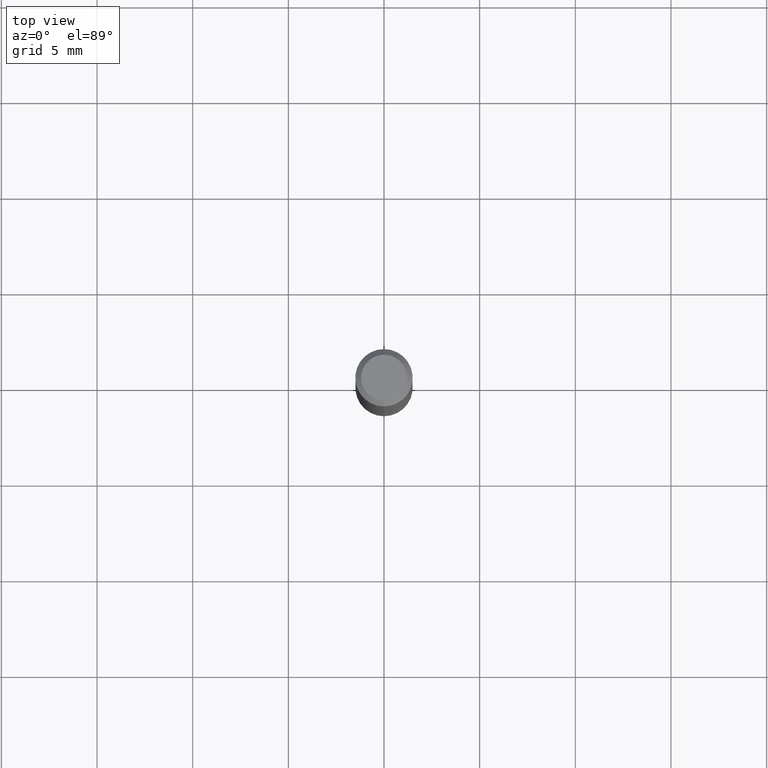
[diagram: clean part render]
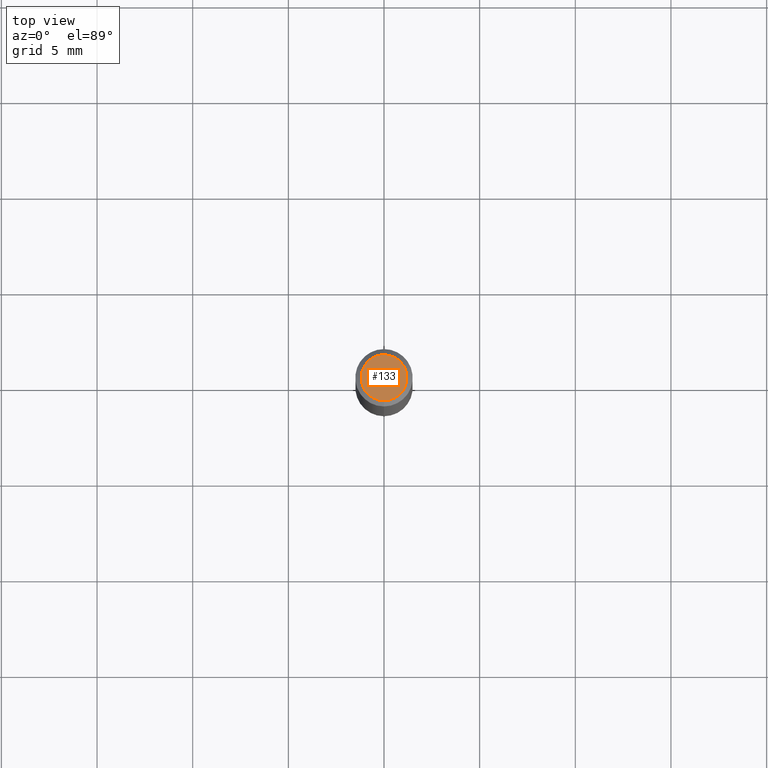
[diagram: same view with one face highlighted and labeled with its STEP entity id]
A machine part, top view. The second image highlights one B-rep face of the part: STEP entity #133.
In plain terms, the highlighted planar face has unit normal (-0, 0, 1).
Its self-contained STEP definition (entity closure, byte-faithful):
#115=EDGE_CURVE('',#159,#149,#253,.T.);
#133=ADVANCED_FACE('',(#274),#275,.T.);
#149=VERTEX_POINT('',#294);
#159=VERTEX_POINT('',#306);
#171=EDGE_CURVE('',#149,#159,#318,.T.);
#253=CIRCLE('',#409,1.2);
#274=FACE_OUTER_BOUND('',#438,.T.);
#275=PLANE('',#439);
#294=CARTESIAN_POINT('',(1.46952762458685E-016,-1.2,0.0));
#306=CARTESIAN_POINT('',(0.0,1.2,0.0));
#318=CIRCLE('',#486,1.2);
#409=AXIS2_PLACEMENT_3D('',#565,#566,#567);
#438=EDGE_LOOP('',(#597,#598));
#439=AXIS2_PLACEMENT_3D('',#599,#600,#601);
#486=AXIS2_PLACEMENT_3D('',#653,#654,#655);
#565=CARTESIAN_POINT('',(0.0,0.0,0.0));
#566=DIRECTION('',(0.0,0.0,-1.0));
#567=DIRECTION('',(0.0,1.0,0.0));
#597=ORIENTED_EDGE('',*,*,#115,.F.);
#598=ORIENTED_EDGE('',*,*,#171,.F.);
#599=CARTESIAN_POINT('',(0.0,0.6,0.0));
#600=DIRECTION('',(-0.0,0.0,1.0));
#601=DIRECTION('',(0.0,-1.0,0.0));
#653=CARTESIAN_POINT('',(0.0,0.0,0.0));
#654=DIRECTION('',(0.0,0.0,-1.0));
#655=DIRECTION('',(0.0,1.0,0.0));